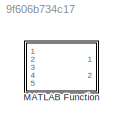
MODEL slx_9f606b734c17
KIND model
CONFIG AbsTol = auto
CONFIG EnableMultiTasking = off
CONFIG FixedStep = auto
CONFIG MaxStep = auto
CONFIG MinStep = auto
CONFIG RelTol = 1e-3
CONFIG SampleTimeConstraint = Unconstrained
CONFIG SolverName = VariableStepAuto
CONFIG StartTime = 0.0
CONFIG StopTime = 10.0
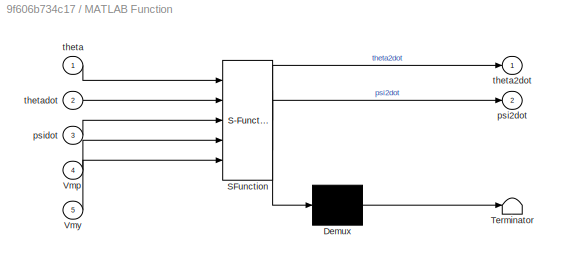
BLOCK [SubSystem] MATLAB Function
  ErrorFcn = Stateflow.Translate.translate
  PermitHierarchicalResolution = ExplicitOnly
  Ports = [5, 2]
  RequestExecContextInheritance = off
  SFBlockType = MATLAB Function
  TreatAsAtomicUnit = on
BLOCK [Demux] MATLAB Function/ Demux 
  Outputs = 1
  Ports = [1, 1]
BLOCK [S-Function] MATLAB Function/ SFunction 
  EnableBusSupport = off
  FunctionName = sf_sfun
  PortCounts = [5 3]
  Ports = [5, 3]
  SFcnIsStateOwnerBlock = off
  SFunctionDeploymentMode = off
  Tag = Stateflow S-Function 2
BLOCK [Terminator] MATLAB Function/ Terminator 
BLOCK [Inport] MATLAB Function/Vmp
  Port = 4
BLOCK [Inport] MATLAB Function/Vmy
  Port = 5
BLOCK [Outport] MATLAB Function/psi2dot
  Port = 2
BLOCK [Inport] MATLAB Function/psidot
  Port = 3
BLOCK [Inport] MATLAB Function/theta
BLOCK [Outport] MATLAB Function/theta2dot
BLOCK [Inport] MATLAB Function/thetadot
  Port = 2
CHART MATLAB Function states=1 transitions=1
  STATE_LABEL 'eML_blk_kernel()'
  STATE_LABEL 'SCRIPT:\nfunction [theta2dot, psi2dot] = fcn(theta,thetadot,psidot,Vmp,Vmy)\ntheta2dot=(Kpp*Vmp+Kpy*Vmy-Bp*thetadot-Mheli*Lcm^2*sin(theta)*cos(theta)*psidot^2-Mheli*g*Lcm*cos(theta))/Jtp;\npsi2dot=(Kyp*Vmp+Kyy*Vmy-By*psidot+2*Mheli*Lcm^2*sin(theta)*cos(theta)*psidot*thetadot)/(Jeq_y+Mheli*Lcm^2*cos(theta)*cos(theta));\nend\n'
CHART  states=0 transitions=0
